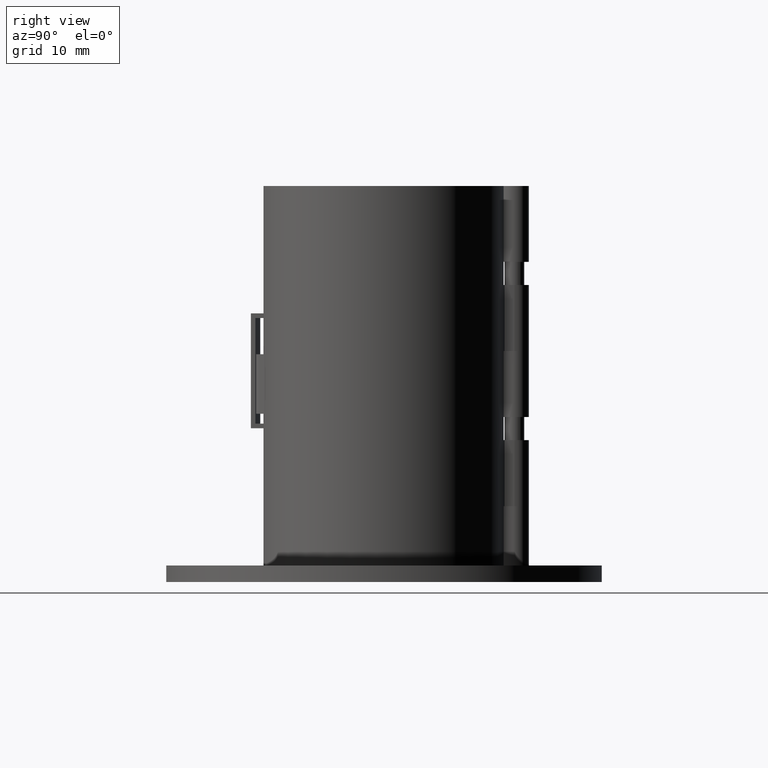
[diagram: clean part render]
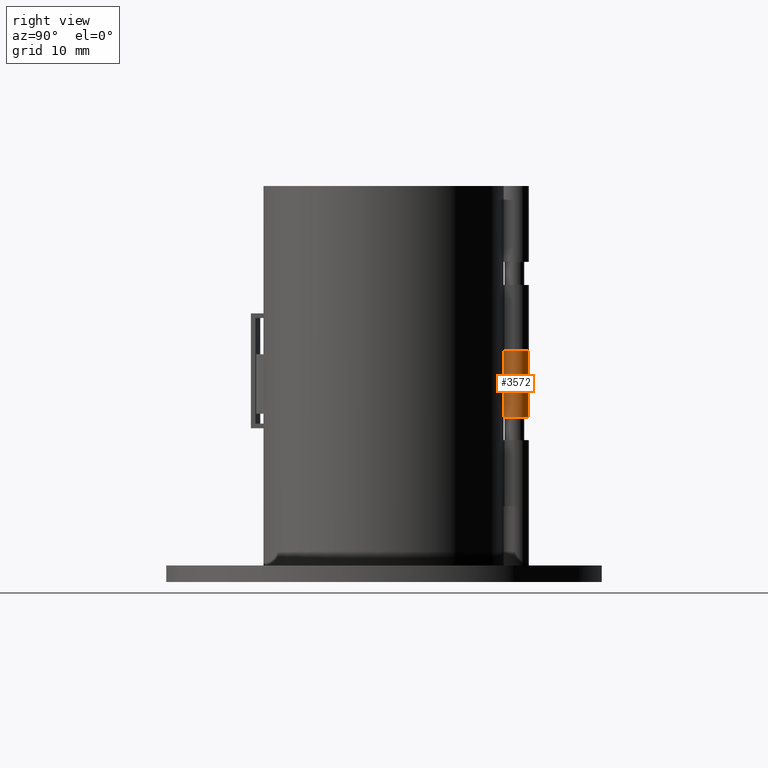
[diagram: same view with one face highlighted and labeled with its STEP entity id]
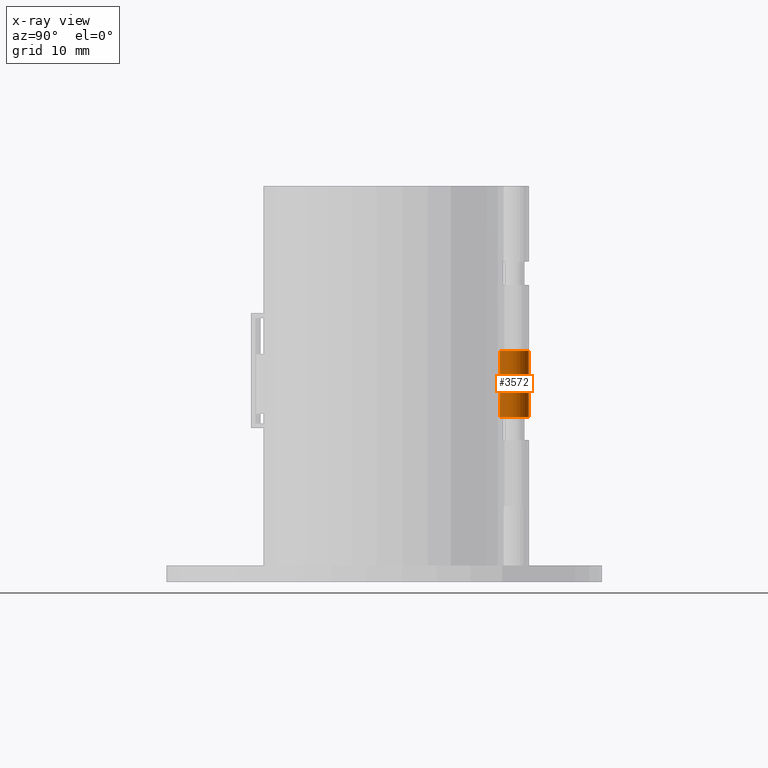
[diagram: x-ray of the same camera — body ghosted, the highlighted face saturated]
A machine part, right view. The second image highlights one B-rep face of the part: STEP entity #3572.
The next image is the same camera in x-ray: the body ghosted, the highlighted face saturated — about 0% of this face is hidden behind the body in this view.
In plain terms, the highlighted cylindrical surface (edge-blend (fillet) strip) has radius 2.2 mm, axis along (0, -0, -1).
Its self-contained STEP definition (entity closure, byte-faithful):
#3029=CARTESIAN_POINT('',(9.229562E-014,17.549999999999947,25.000000000000121));
#3030=VERTEX_POINT('',#3029);
#3038=CARTESIAN_POINT('',(9.229562E-014,17.549999999999947,35.000000000000114));
#3039=VERTEX_POINT('',#3038);
#3040=CARTESIAN_POINT('',(9.229562E-014,17.549999999999947,25.000000000000117));
#3041=DIRECTION('',(0.0,0.0,1.0));
#3042=VECTOR('',#3041,9.999999999999996);
#3043=LINE('',#3040,#3042);
#3044=EDGE_CURVE('',#3030,#3039,#3043,.T.);
#3186=CARTESIAN_POINT('',(-2.199999999999905,19.74999999999995,25.000000000000121));
#3187=VERTEX_POINT('',#3186);
#3194=CARTESIAN_POINT('',(9.432732E-014,19.74999999999995,25.000000000000121));
#3195=DIRECTION('',(0.0,0.0,1.0));
#3196=DIRECTION('',(-1.0,0.0,0.0));
#3197=AXIS2_PLACEMENT_3D('',#3194,#3195,#3196);
#3198=CIRCLE('',#3197,2.200000000000005);
#3199=EDGE_CURVE('',#3030,#3187,#3198,.T.);
#3359=CARTESIAN_POINT('',(-2.199999999999907,19.74999999999995,35.000000000000114));
#3360=VERTEX_POINT('',#3359);
#3361=CARTESIAN_POINT('',(9.432732E-014,19.74999999999995,35.000000000000114));
#3362=DIRECTION('',(0.0,0.0,-1.0));
#3363=DIRECTION('',(-1.0,0.0,0.0));
#3364=AXIS2_PLACEMENT_3D('',#3361,#3362,#3363);
#3365=CIRCLE('',#3364,2.200000000000005);
#3366=EDGE_CURVE('',#3360,#3039,#3365,.T.);
#3556=CARTESIAN_POINT('',(9.432732E-014,19.74999999999995,30.000000000000114));
#3557=DIRECTION('',(8.281969E-032,-6.409495E-031,-1.0));
#3558=DIRECTION('',(-1.0,0.0,0.0));
#3559=AXIS2_PLACEMENT_3D('',#3556,#3557,#3558);
#3560=CYLINDRICAL_SURFACE('',#3559,2.200000000000005);
#3561=ORIENTED_EDGE('',*,*,#3199,.T.);
#3562=CARTESIAN_POINT('',(-2.199999999999908,19.74999999999995,25.000000000000117));
#3563=DIRECTION('',(0.0,0.0,1.0));
#3564=VECTOR('',#3563,9.999999999999996);
#3565=LINE('',#3562,#3564);
#3566=EDGE_CURVE('',#3187,#3360,#3565,.T.);
#3567=ORIENTED_EDGE('',*,*,#3566,.T.);
#3568=ORIENTED_EDGE('',*,*,#3366,.T.);
#3569=ORIENTED_EDGE('',*,*,#3044,.F.);
#3570=EDGE_LOOP('',(#3561,#3567,#3568,#3569));
#3571=FACE_OUTER_BOUND('',#3570,.T.);
#3572=ADVANCED_FACE('',(#3571),#3560,.T.);